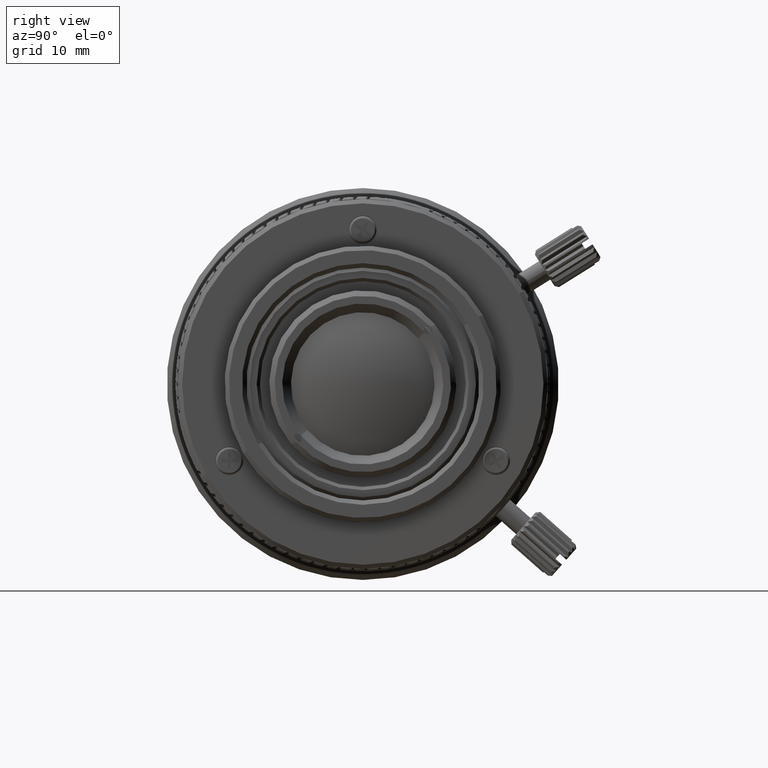
[diagram: clean part render]
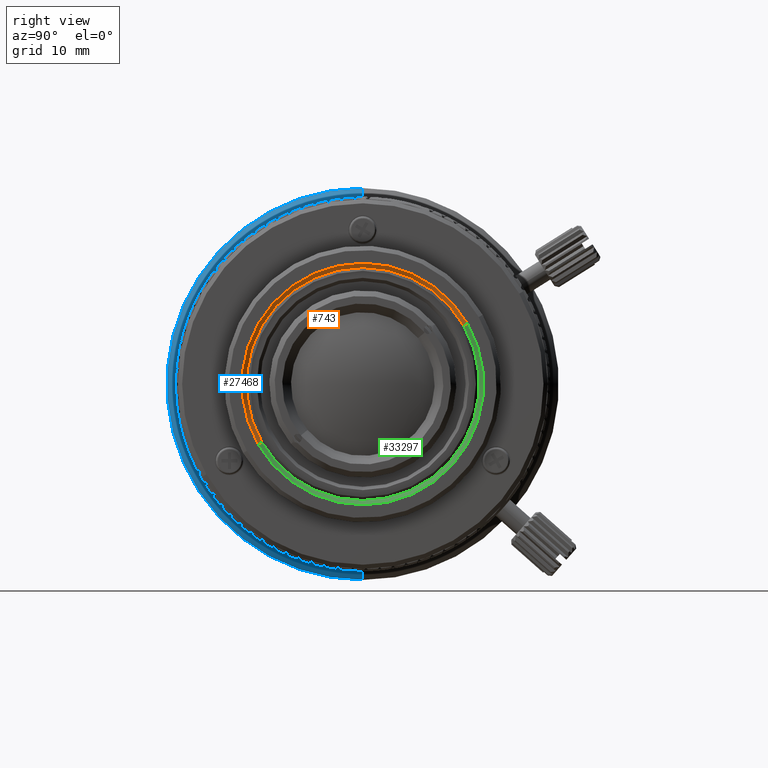
[diagram: same view with three faces highlighted in distinct colors, each labeled with its STEP entity id]
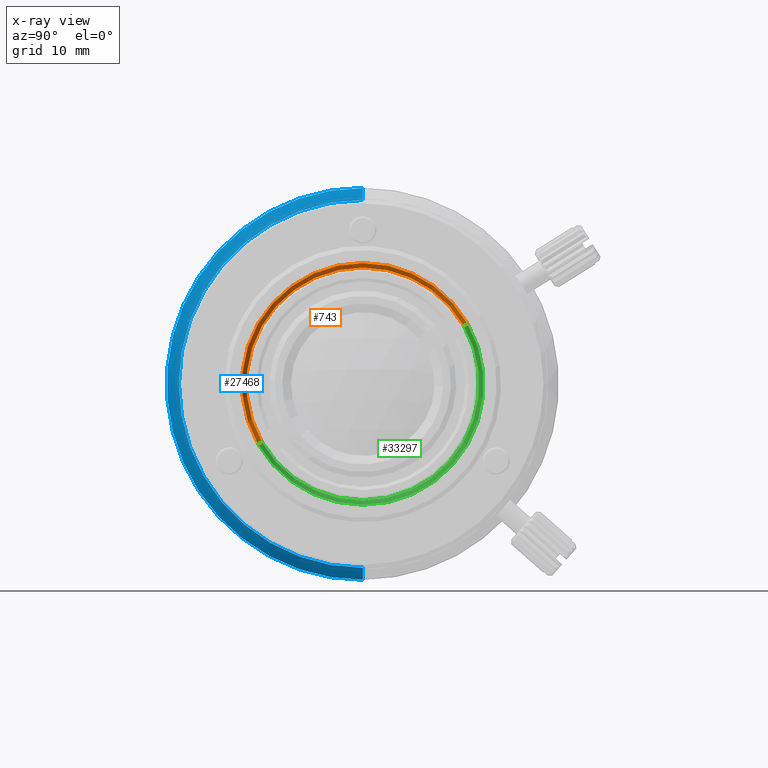
[diagram: x-ray of the same camera — body ghosted, the three highlighted faces saturated]
A machine part, right view with three faces highlighted in distinct colors.
The next image is the same camera in x-ray (body ghosted, the three faces saturated) — at least one of them is partly hidden behind the body in this view.
Their STEP definitions:

[orange] entity #743 — the highlighted conical surface has half-angle 45 deg.
#743 = ADVANCED_FACE ( 'NONE', ( #60911 ), #10305, .F. ) ;
#1756 = LINE ( 'NONE', #8805, #60968 ) ;
#2623 = EDGE_LOOP ( 'NONE', ( #6837, #60524, #39455, #75471 ) ) ;
#4025 = DIRECTION ( 'NONE',  ( -1.000000000000000000, -0.000000000000000000, -0.000000000000000000 ) ) ;
#6837 = ORIENTED_EDGE ( 'NONE', *, *, #62038, .F. ) ;
#7062 = EDGE_CURVE ( 'NONE', #57141, #40952, #1756, .T. ) ;
#8360 = CARTESIAN_POINT ( 'NONE',  ( 25.24000000000000199, 7.057796218657209954E-15, 3.635399248874459575E-15 ) ) ;
#8805 = CARTESIAN_POINT ( 'NONE',  ( 25.24000000000000199, 9.612881982007255743, 5.550000000000050449 ) ) ;
#9522 = EDGE_CURVE ( 'NONE', #9817, #57141, #55918, .T. ) ;
#9817 = VERTEX_POINT ( 'NONE', #17355 ) ;
#10305 = CONICAL_SURFACE ( 'NONE', #12836, 11.10000000000000675, 0.7853981633974461696 ) ;
#11518 = AXIS2_PLACEMENT_3D ( 'NONE', #62868, #4025, #50700 ) ;
#12836 = AXIS2_PLACEMENT_3D ( 'NONE', #8360, #49133, #54641 ) ;
#17355 = CARTESIAN_POINT ( 'NONE',  ( 24.84000000000000341, -9.266471820493471512, -5.350000000000043165 ) ) ;
#18348 = AXIS2_PLACEMENT_3D ( 'NONE', #28364, #63266, #64028 ) ;
#18929 = VECTOR ( 'NONE', #42622, 1000.000000000000114 ) ;
#19870 = LINE ( 'NONE', #43776, #18929 ) ;
#26067 = DIRECTION ( 'NONE',  ( 0.7071067811865490160, 0.6123724356957915838, 0.3535533905932757848 ) ) ;
#28364 = CARTESIAN_POINT ( 'NONE',  ( 24.84000000000000341, 7.057796218657209954E-15, 3.635399248874459575E-15 ) ) ;
#38619 = EDGE_CURVE ( 'NONE', #68374, #40952, #67804, .T. ) ;
#39455 = ORIENTED_EDGE ( 'NONE', *, *, #7062, .T. ) ;
#40952 = VERTEX_POINT ( 'NONE', #51586 ) ;
#42622 = DIRECTION ( 'NONE',  ( 0.7071067811865489050, -0.6123724356957916948, -0.3535533905932756737 ) ) ;
#43776 = CARTESIAN_POINT ( 'NONE',  ( 25.24000000000000199, -9.612881982007243309, -5.550000000000042455 ) ) ;
#49133 = DIRECTION ( 'NONE',  ( 1.000000000000000000, 0.000000000000000000, 0.000000000000000000 ) ) ;
#50700 = DIRECTION ( 'NONE',  ( 0.000000000000000000, 0.8660254037844362651, 0.5000000000000038858 ) ) ;
#51586 = CARTESIAN_POINT ( 'NONE',  ( 25.24000000000000199, 9.612881982007255743, 5.550000000000050449 ) ) ;
#53612 = CARTESIAN_POINT ( 'NONE',  ( 25.24000000000000199, -9.612881982007243309, -5.550000000000042455 ) ) ;
#54641 = DIRECTION ( 'NONE',  ( 0.000000000000000000, 0.8660254037844362651, 0.5000000000000038858 ) ) ;
#55918 = CIRCLE ( 'NONE', #18348, 10.70000000000000817 ) ;
#57141 = VERTEX_POINT ( 'NONE', #65698 ) ;
#60524 = ORIENTED_EDGE ( 'NONE', *, *, #9522, .T. ) ;
#60911 = FACE_OUTER_BOUND ( 'NONE', #2623, .T. ) ;
#60968 = VECTOR ( 'NONE', #26067, 1000.000000000000227 ) ;
#62038 = EDGE_CURVE ( 'NONE', #9817, #68374, #19870, .T. ) ;
#62868 = CARTESIAN_POINT ( 'NONE',  ( 25.24000000000000199, 7.057796218657209954E-15, 3.635399248874459575E-15 ) ) ;
#63266 = DIRECTION ( 'NONE',  ( -1.000000000000000000, 0.000000000000000000, 0.000000000000000000 ) ) ;
#64028 = DIRECTION ( 'NONE',  ( 0.000000000000000000, -0.8660254037844363761, -0.5000000000000039968 ) ) ;
#65698 = CARTESIAN_POINT ( 'NONE',  ( 24.84000000000000341, 9.266471820493483946, 5.350000000000051159 ) ) ;
#67804 = CIRCLE ( 'NONE', #11518, 11.10000000000000675 ) ;
#68374 = VERTEX_POINT ( 'NONE', #53612 ) ;
#75471 = ORIENTED_EDGE ( 'NONE', *, *, #38619, .F. ) ;

[blue] entity #27468 — the highlighted conical surface has half-angle 45 deg.
#27 = EDGE_CURVE ( 'NONE', #33264, #33904, #67394, .T. ) ;
#1287 = EDGE_CURVE ( 'NONE', #33264, #41453, #23823, .T. ) ;
#1537 = AXIS2_PLACEMENT_3D ( 'NONE', #58595, #33534, #76248 ) ;
#4642 = CARTESIAN_POINT ( 'NONE',  ( -8.879999999999999005, 1.482901162574388286E-16, 18.00000000000001066 ) ) ;
#5995 = CARTESIAN_POINT ( 'NONE',  ( -7.780000000000002025, 1.482901162574388286E-16, 16.90000000000000568 ) ) ;
#7550 = ORIENTED_EDGE ( 'NONE', *, *, #1287, .T. ) ;
#8502 = CARTESIAN_POINT ( 'NONE',  ( -7.780000000000002025, 2.285298780769570990E-15, -16.90000000000000568 ) ) ;
#11995 = ORIENTED_EDGE ( 'NONE', *, *, #27, .F. ) ;
#13187 = CARTESIAN_POINT ( 'NONE',  ( -7.780000000000002025, 1.482901162574388286E-16, 8.298371359543248882E-16 ) ) ;
#14081 = CARTESIAN_POINT ( 'NONE',  ( -8.879999999999999005, 2.352654354722676031E-15, -18.00000000000001066 ) ) ;
#15106 = AXIS2_PLACEMENT_3D ( 'NONE', #13187, #17484, #24939 ) ;
#17484 = DIRECTION ( 'NONE',  ( -1.000000000000000000, 0.000000000000000000, 0.000000000000000000 ) ) ;
#19031 = CIRCLE ( 'NONE', #71610, 18.00000000000001066 ) ;
#23445 = DIRECTION ( 'NONE',  ( -0.7071067811865452413, 0.000000000000000000, 0.7071067811865497932 ) ) ;
#23823 = CIRCLE ( 'NONE', #15106, 16.90000000000000568 ) ;
#24939 = DIRECTION ( 'NONE',  ( 0.000000000000000000, 0.000000000000000000, 1.000000000000000000 ) ) ;
#27468 = ADVANCED_FACE ( 'NONE', ( #34676 ), #32819, .T. ) ;
#28359 = VERTEX_POINT ( 'NONE', #75596 ) ;
#32819 = CONICAL_SURFACE ( 'NONE', #1537, 18.00000000000001066, 0.7853981633974514986 ) ;
#33264 = VERTEX_POINT ( 'NONE', #8502 ) ;
#33534 = DIRECTION ( 'NONE',  ( -1.000000000000000000, 0.000000000000000000, 0.000000000000000000 ) ) ;
#33904 = VERTEX_POINT ( 'NONE', #73786 ) ;
#34676 = FACE_OUTER_BOUND ( 'NONE', #62247, .T. ) ;
#37593 = DIRECTION ( 'NONE',  ( -0.7071067811865452413, 8.659560562354961208E-17, -0.7071067811865497932 ) ) ;
#39059 = VECTOR ( 'NONE', #37593, 1000.000000000000000 ) ;
#41453 = VERTEX_POINT ( 'NONE', #5995 ) ;
#50184 = DIRECTION ( 'NONE',  ( -1.000000000000000000, -0.000000000000000000, -0.000000000000000000 ) ) ;
#52504 = ORIENTED_EDGE ( 'NONE', *, *, #66479, .F. ) ;
#52602 = ORIENTED_EDGE ( 'NONE', *, *, #68479, .T. ) ;
#58595 = CARTESIAN_POINT ( 'NONE',  ( -8.879999999999999005, 1.482901162574388286E-16, 8.298371359543248882E-16 ) ) ;
#60820 = DIRECTION ( 'NONE',  ( 0.000000000000000000, 0.000000000000000000, 1.000000000000000000 ) ) ;
#62247 = EDGE_LOOP ( 'NONE', ( #11995, #7550, #52602, #52504 ) ) ;
#66479 = EDGE_CURVE ( 'NONE', #33904, #28359, #19031, .T. ) ;
#66759 = VECTOR ( 'NONE', #23445, 1000.000000000000000 ) ;
#67394 = LINE ( 'NONE', #14081, #39059 ) ;
#68479 = EDGE_CURVE ( 'NONE', #41453, #28359, #77159, .T. ) ;
#71610 = AXIS2_PLACEMENT_3D ( 'NONE', #72976, #50184, #60820 ) ;
#72976 = CARTESIAN_POINT ( 'NONE',  ( -8.879999999999999005, 1.482901162574388286E-16, 8.298371359543248882E-16 ) ) ;
#73786 = CARTESIAN_POINT ( 'NONE',  ( -8.879999999999999005, 2.352654354722676031E-15, -18.00000000000001066 ) ) ;
#75596 = CARTESIAN_POINT ( 'NONE',  ( -8.879999999999999005, 1.482901162574388286E-16, 18.00000000000001066 ) ) ;
#76248 = DIRECTION ( 'NONE',  ( 0.000000000000000000, 0.000000000000000000, 1.000000000000000000 ) ) ;
#77159 = LINE ( 'NONE', #4642, #66759 ) ;

[green] entity #33297 — the highlighted conical surface has half-angle 45 deg.
#1066 = FACE_OUTER_BOUND ( 'NONE', #15500, .T. ) ;
#1506 = CIRCLE ( 'NONE', #3958, 10.70000000000000817 ) ;
#1756 = LINE ( 'NONE', #8805, #60968 ) ;
#3958 = AXIS2_PLACEMENT_3D ( 'NONE', #43184, #19657, #36517 ) ;
#7062 = EDGE_CURVE ( 'NONE', #57141, #40952, #1756, .T. ) ;
#8805 = CARTESIAN_POINT ( 'NONE',  ( 25.24000000000000199, 9.612881982007255743, 5.550000000000050449 ) ) ;
#8961 = ORIENTED_EDGE ( 'NONE', *, *, #72059, .T. ) ;
#9361 = EDGE_CURVE ( 'NONE', #40952, #68374, #45895, .T. ) ;
#9817 = VERTEX_POINT ( 'NONE', #17355 ) ;
#15500 = EDGE_LOOP ( 'NONE', ( #8961, #77230, #34686, #17599 ) ) ;
#17355 = CARTESIAN_POINT ( 'NONE',  ( 24.84000000000000341, -9.266471820493471512, -5.350000000000043165 ) ) ;
#17599 = ORIENTED_EDGE ( 'NONE', *, *, #7062, .F. ) ;
#18929 = VECTOR ( 'NONE', #42622, 1000.000000000000114 ) ;
#19657 = DIRECTION ( 'NONE',  ( -1.000000000000000000, 0.000000000000000000, 0.000000000000000000 ) ) ;
#19870 = LINE ( 'NONE', #43776, #18929 ) ;
#23757 = CONICAL_SURFACE ( 'NONE', #33724, 11.10000000000000675, 0.7853981633974461696 ) ;
#26067 = DIRECTION ( 'NONE',  ( 0.7071067811865490160, 0.6123724356957915838, 0.3535533905932757848 ) ) ;
#31644 = DIRECTION ( 'NONE',  ( 0.000000000000000000, 0.8660254037844362651, 0.5000000000000038858 ) ) ;
#33297 = ADVANCED_FACE ( 'NONE', ( #1066 ), #23757, .F. ) ;
#33724 = AXIS2_PLACEMENT_3D ( 'NONE', #61432, #44170, #31644 ) ;
#34686 = ORIENTED_EDGE ( 'NONE', *, *, #9361, .F. ) ;
#36517 = DIRECTION ( 'NONE',  ( 0.000000000000000000, -0.8660254037844363761, -0.5000000000000039968 ) ) ;
#40952 = VERTEX_POINT ( 'NONE', #51586 ) ;
#42622 = DIRECTION ( 'NONE',  ( 0.7071067811865489050, -0.6123724356957916948, -0.3535533905932756737 ) ) ;
#43184 = CARTESIAN_POINT ( 'NONE',  ( 24.84000000000000341, 7.057796218657209954E-15, 3.635399248874459575E-15 ) ) ;
#43776 = CARTESIAN_POINT ( 'NONE',  ( 25.24000000000000199, -9.612881982007243309, -5.550000000000042455 ) ) ;
#44170 = DIRECTION ( 'NONE',  ( 1.000000000000000000, 0.000000000000000000, 0.000000000000000000 ) ) ;
#45895 = CIRCLE ( 'NONE', #72213, 11.10000000000000675 ) ;
#48272 = DIRECTION ( 'NONE',  ( -1.000000000000000000, -0.000000000000000000, -0.000000000000000000 ) ) ;
#51586 = CARTESIAN_POINT ( 'NONE',  ( 25.24000000000000199, 9.612881982007255743, 5.550000000000050449 ) ) ;
#53612 = CARTESIAN_POINT ( 'NONE',  ( 25.24000000000000199, -9.612881982007243309, -5.550000000000042455 ) ) ;
#57141 = VERTEX_POINT ( 'NONE', #65698 ) ;
#60968 = VECTOR ( 'NONE', #26067, 1000.000000000000227 ) ;
#61432 = CARTESIAN_POINT ( 'NONE',  ( 25.24000000000000199, 7.057796218657209954E-15, 3.635399248874459575E-15 ) ) ;
#62038 = EDGE_CURVE ( 'NONE', #9817, #68374, #19870, .T. ) ;
#65698 = CARTESIAN_POINT ( 'NONE',  ( 24.84000000000000341, 9.266471820493483946, 5.350000000000051159 ) ) ;
#68374 = VERTEX_POINT ( 'NONE', #53612 ) ;
#72059 = EDGE_CURVE ( 'NONE', #57141, #9817, #1506, .T. ) ;
#72195 = DIRECTION ( 'NONE',  ( 0.000000000000000000, 0.8660254037844362651, 0.5000000000000038858 ) ) ;
#72213 = AXIS2_PLACEMENT_3D ( 'NONE', #72576, #48272, #72195 ) ;
#72576 = CARTESIAN_POINT ( 'NONE',  ( 25.24000000000000199, 7.057796218657209954E-15, 3.635399248874459575E-15 ) ) ;
#77230 = ORIENTED_EDGE ( 'NONE', *, *, #62038, .T. ) ;